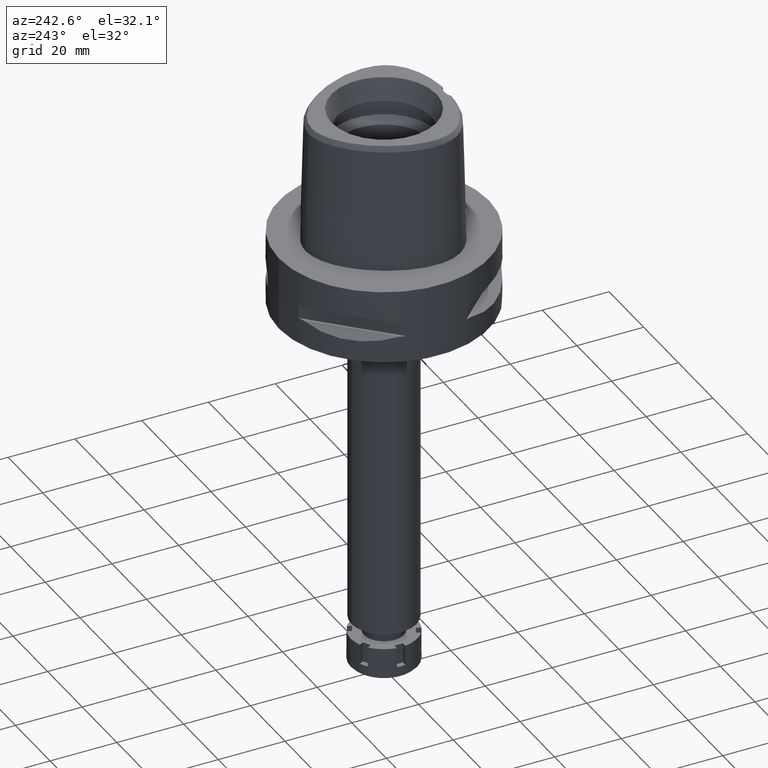
[diagram: clean part render]
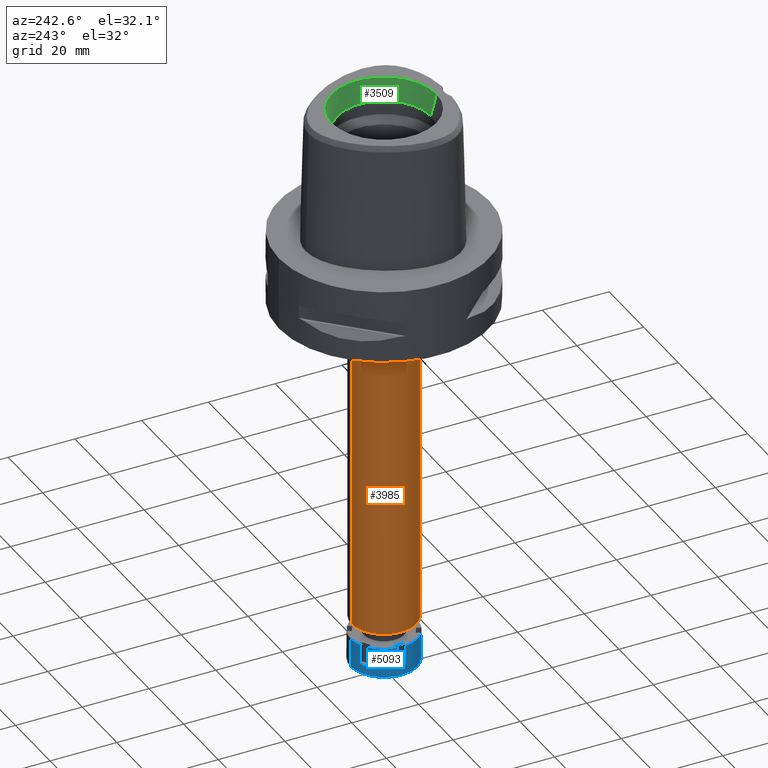
[diagram: same view with three faces highlighted in distinct colors, each labeled with its STEP entity id]
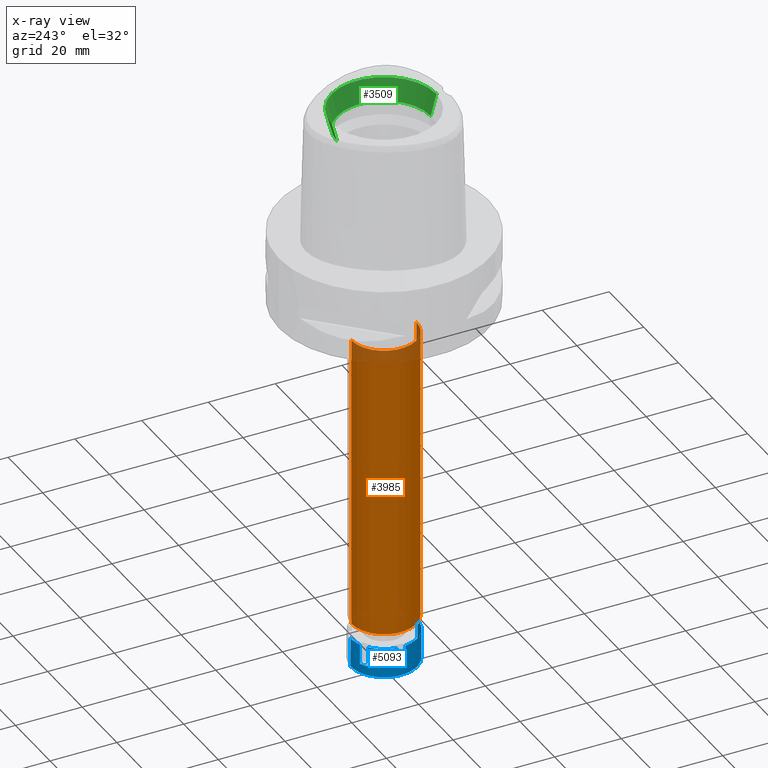
[diagram: x-ray of the same camera — body ghosted, the three highlighted faces saturated]
A machine part, auxiliary view with three faces highlighted in distinct colors.
The next image is the same camera in x-ray (body ghosted, the three faces saturated) — at least one of them is partly hidden behind the body in this view.
Their STEP definitions:

[orange] entity #3985 — the highlighted cylindrical surface (partial cylindrical patch) has radius 9.75 mm, axis along (0, 0, -1).
#63 = CARTESIAN_POINT ( 'NONE',  ( 0.0000000000000000000, 0.0000000000000000000, -32.00000000000000000 ) ) ;
#131 = DIRECTION ( 'NONE',  ( 0.0000000000000000000, -1.000000000000000000, 0.0000000000000000000 ) ) ;
#354 = DIRECTION ( 'NONE',  ( 0.0000000000000000000, 0.0000000000000000000, -1.000000000000000000 ) ) ;
#449 = VERTEX_POINT ( 'NONE', #1716 ) ;
#460 = EDGE_LOOP ( 'NONE', ( #4067, #4684, #1941, #2337 ) ) ;
#539 = CARTESIAN_POINT ( 'NONE',  ( 0.0000000000000000000, 1.304248841091999852E-14, -121.0000000000000000 ) ) ;
#731 = CARTESIAN_POINT ( 'NONE',  ( 0.0000000000000000000, -9.750000000000000000, -32.00000000000000000 ) ) ;
#848 = VECTOR ( 'NONE', #354, 1000.000000000000000 ) ;
#911 = VERTEX_POINT ( 'NONE', #3274 ) ;
#996 = EDGE_CURVE ( 'NONE', #5328, #911, #5111, .T. ) ;
#1007 = DIRECTION ( 'NONE',  ( 0.0000000000000000000, 0.0000000000000000000, -1.000000000000000000 ) ) ;
#1233 = EDGE_CURVE ( 'NONE', #5328, #449, #5398, .T. ) ;
#1247 = CARTESIAN_POINT ( 'NONE',  ( 0.0000000000000000000, -9.750000000000000000, -32.00000000000000000 ) ) ;
#1317 = DIRECTION ( 'NONE',  ( 0.0000000000000000000, 0.0000000000000000000, 1.000000000000000000 ) ) ;
#1520 = AXIS2_PLACEMENT_3D ( 'NONE', #63, #1746, #3836 ) ;
#1716 = CARTESIAN_POINT ( 'NONE',  ( 0.0000000000000000000, 9.750000000000000000, -32.00000000000000000 ) ) ;
#1746 = DIRECTION ( 'NONE',  ( 0.0000000000000000000, 0.0000000000000000000, -1.000000000000000000 ) ) ;
#1941 = ORIENTED_EDGE ( 'NONE', *, *, #1233, .T. ) ;
#2195 = DIRECTION ( 'NONE',  ( 0.0000000000000000000, 1.000000000000000000, 0.0000000000000000000 ) ) ;
#2236 = FACE_OUTER_BOUND ( 'NONE', #460, .T. ) ;
#2264 = CARTESIAN_POINT ( 'NONE',  ( 0.0000000000000000000, 1.304248841091999852E-14, 6.500000000000000000 ) ) ;
#2337 = ORIENTED_EDGE ( 'NONE', *, *, #2358, .T. ) ;
#2358 = EDGE_CURVE ( 'NONE', #449, #4967, #4524, .T. ) ;
#2440 = VECTOR ( 'NONE', #1007, 1000.000000000000000 ) ;
#2609 = AXIS2_PLACEMENT_3D ( 'NONE', #539, #1317, #2195 ) ;
#3118 = CARTESIAN_POINT ( 'NONE',  ( 0.0000000000000000000, 9.750000000000000000, -32.00000000000000000 ) ) ;
#3162 = CYLINDRICAL_SURFACE ( 'NONE', #3448, 9.750000000000000000 ) ;
#3274 = CARTESIAN_POINT ( 'NONE',  ( 0.0000000000000000000, -9.750000000000000000, -121.0000000000000000 ) ) ;
#3284 = EDGE_CURVE ( 'NONE', #4967, #911, #4496, .T. ) ;
#3448 = AXIS2_PLACEMENT_3D ( 'NONE', #2264, #3980, #131 ) ;
#3836 = DIRECTION ( 'NONE',  ( 0.0000000000000000000, -1.000000000000000000, 0.0000000000000000000 ) ) ;
#3980 = DIRECTION ( 'NONE',  ( 0.0000000000000000000, 0.0000000000000000000, -1.000000000000000000 ) ) ;
#3985 = ADVANCED_FACE ( 'NONE', ( #2236 ), #3162, .T. ) ;
#4067 = ORIENTED_EDGE ( 'NONE', *, *, #3284, .T. ) ;
#4496 = CIRCLE ( 'NONE', #2609, 9.750000000000000000 ) ;
#4524 = LINE ( 'NONE', #3118, #2440 ) ;
#4684 = ORIENTED_EDGE ( 'NONE', *, *, #996, .F. ) ;
#4967 = VERTEX_POINT ( 'NONE', #5166 ) ;
#5111 = LINE ( 'NONE', #1247, #848 ) ;
#5166 = CARTESIAN_POINT ( 'NONE',  ( 0.0000000000000000000, 9.750000000000000000, -121.0000000000000000 ) ) ;
#5328 = VERTEX_POINT ( 'NONE', #731 ) ;
#5398 = CIRCLE ( 'NONE', #1520, 9.750000000000000000 ) ;

[blue] entity #5093 — the highlighted cylindrical surface (partial cylindrical patch) has radius 10 mm, axis along (0, 0, -1).
#6 = CIRCLE ( 'NONE', #3507, 10.00000000000000000 ) ;
#32 = ORIENTED_EDGE ( 'NONE', *, *, #4158, .T. ) ;
#42 = DIRECTION ( 'NONE',  ( 0.0000000000000000000, 1.000000000000000000, 0.0000000000000000000 ) ) ;
#60 = VERTEX_POINT ( 'NONE', #3190 ) ;
#98 = VERTEX_POINT ( 'NONE', #1022 ) ;
#125 = DIRECTION ( 'NONE',  ( 0.0000000000000000000, -1.000000000000000000, 0.0000000000000000000 ) ) ;
#128 = DIRECTION ( 'NONE',  ( 0.0000000000000000000, 0.0000000000000000000, -1.000000000000000000 ) ) ;
#246 = ORIENTED_EDGE ( 'NONE', *, *, #3057, .T. ) ;
#262 = EDGE_CURVE ( 'NONE', #1766, #4148, #2400, .T. ) ;
#270 = DIRECTION ( 'NONE',  ( 0.0000000000000000000, 0.0000000000000000000, -1.000000000000000000 ) ) ;
#321 = CARTESIAN_POINT ( 'NONE',  ( 0.0000000000000000000, 0.0000000000000000000, 0.0000000000000000000 ) ) ;
#360 = ORIENTED_EDGE ( 'NONE', *, *, #262, .F. ) ;
#402 = DIRECTION ( 'NONE',  ( -0.6043315462976971419, 0.7967329428041960426, 0.0000000000000000000 ) ) ;
#406 = CARTESIAN_POINT ( 'NONE',  ( -6.043315462977000507, -7.967329428041999506, 0.0000000000000000000 ) ) ;
#477 = ORIENTED_EDGE ( 'NONE', *, *, #5081, .F. ) ;
#493 = AXIS2_PLACEMENT_3D ( 'NONE', #1601, #3325, #5043 ) ;
#521 = DIRECTION ( 'NONE',  ( -0.6043315462976971419, -0.7967329428041960426, 0.0000000000000000000 ) ) ;
#533 = EDGE_CURVE ( 'NONE', #3692, #3430, #929, .T. ) ;
#542 = CARTESIAN_POINT ( 'NONE',  ( -3.878251953514999961, 9.217329428041999506, 0.0000000000000000000 ) ) ;
#547 = FACE_OUTER_BOUND ( 'NONE', #3721, .T. ) ;
#581 = LINE ( 'NONE', #2291, #881 ) ;
#717 = ORIENTED_EDGE ( 'NONE', *, *, #920, .F. ) ;
#721 = CARTESIAN_POINT ( 'NONE',  ( 0.0000000000000000000, 0.0000000000000000000, -6.000000000000000000 ) ) ;
#752 = CARTESIAN_POINT ( 'NONE',  ( 0.0000000000000000000, -10.00000000000000000, -8.800000000000000711 ) ) ;
#775 = CARTESIAN_POINT ( 'NONE',  ( -3.878251953514999961, 9.217329428041999506, 0.0000000000000000000 ) ) ;
#787 = DIRECTION ( 'NONE',  ( -0.9921567416492210745, -0.1250000000000026090, 0.0000000000000000000 ) ) ;
#832 = DIRECTION ( 'NONE',  ( 0.0000000000000000000, 0.0000000000000000000, -1.000000000000000000 ) ) ;
#835 = LINE ( 'NONE', #406, #3934 ) ;
#842 = VERTEX_POINT ( 'NONE', #4616 ) ;
#871 = VERTEX_POINT ( 'NONE', #1170 ) ;
#881 = VECTOR ( 'NONE', #270, 1000.000000000000000 ) ;
#896 = DIRECTION ( 'NONE',  ( 0.0000000000000000000, 0.0000000000000000000, -1.000000000000000000 ) ) ;
#898 = VERTEX_POINT ( 'NONE', #1141 ) ;
#920 = EDGE_CURVE ( 'NONE', #871, #898, #5419, .T. ) ;
#929 = LINE ( 'NONE', #1014, #2466 ) ;
#941 = VECTOR ( 'NONE', #896, 1000.000000000000000 ) ;
#960 = CYLINDRICAL_SURFACE ( 'NONE', #2312, 10.00000000000000000 ) ;
#999 = LINE ( 'NONE', #4484, #3478 ) ;
#1006 = VERTEX_POINT ( 'NONE', #4183 ) ;
#1014 = CARTESIAN_POINT ( 'NONE',  ( 0.0000000000000000000, 10.00000000000000000, 0.0000000000000000000 ) ) ;
#1022 = CARTESIAN_POINT ( 'NONE',  ( -3.878251953516000050, -9.217329428041999506, 0.0000000000000000000 ) ) ;
#1049 = ORIENTED_EDGE ( 'NONE', *, *, #2661, .T. ) ;
#1062 = AXIS2_PLACEMENT_3D ( 'NONE', #2177, #5140, #1327 ) ;
#1141 = CARTESIAN_POINT ( 'NONE',  ( -6.043315462977000507, 7.967329428041999506, 0.0000000000000000000 ) ) ;
#1170 = CARTESIAN_POINT ( 'NONE',  ( -6.043315462977000507, 7.967329428041999506, -6.000000000000000000 ) ) ;
#1179 = DIRECTION ( 'NONE',  ( 0.0000000000000000000, 0.0000000000000000000, -1.000000000000000000 ) ) ;
#1269 = DIRECTION ( 'NONE',  ( -0.3878251953515154948, 0.9217329428042371209, 0.0000000000000000000 ) ) ;
#1327 = DIRECTION ( 'NONE',  ( -0.9921567416492210745, 0.1250000000000026090, 0.0000000000000000000 ) ) ;
#1376 = CARTESIAN_POINT ( 'NONE',  ( 0.0000000000000000000, 0.0000000000000000000, 0.0000000000000000000 ) ) ;
#1476 = VERTEX_POINT ( 'NONE', #2445 ) ;
#1529 = AXIS2_PLACEMENT_3D ( 'NONE', #4368, #128, #521 ) ;
#1593 = EDGE_CURVE ( 'NONE', #871, #4148, #1614, .T. ) ;
#1601 = CARTESIAN_POINT ( 'NONE',  ( 0.0000000000000000000, 0.0000000000000000000, 0.0000000000000000000 ) ) ;
#1614 = CIRCLE ( 'NONE', #2335, 9.999999999999998224 ) ;
#1669 = CARTESIAN_POINT ( 'NONE',  ( 0.0000000000000000000, -10.00000000000000000, 0.0000000000000000000 ) ) ;
#1766 = VERTEX_POINT ( 'NONE', #542 ) ;
#1770 = AXIS2_PLACEMENT_3D ( 'NONE', #3000, #4264, #42 ) ;
#1785 = DIRECTION ( 'NONE',  ( 0.0000000000000000000, 0.0000000000000000000, -1.000000000000000000 ) ) ;
#1822 = DIRECTION ( 'NONE',  ( 0.0000000000000000000, 0.0000000000000000000, -1.000000000000000000 ) ) ;
#1990 = CARTESIAN_POINT ( 'NONE',  ( 0.0000000000000000000, 0.0000000000000000000, -6.000000000000000000 ) ) ;
#2045 = ORIENTED_EDGE ( 'NONE', *, *, #533, .T. ) ;
#2104 = VECTOR ( 'NONE', #4149, 1000.000000000000000 ) ;
#2177 = CARTESIAN_POINT ( 'NONE',  ( 0.0000000000000000000, 0.0000000000000000000, 0.0000000000000000000 ) ) ;
#2291 = CARTESIAN_POINT ( 'NONE',  ( -9.921567416491999580, 1.250000000000000000, 0.0000000000000000000 ) ) ;
#2312 = AXIS2_PLACEMENT_3D ( 'NONE', #1376, #3107, #125 ) ;
#2335 = AXIS2_PLACEMENT_3D ( 'NONE', #721, #832, #402 ) ;
#2400 = LINE ( 'NONE', #775, #2104 ) ;
#2408 = CIRCLE ( 'NONE', #2504, 9.999999999999998224 ) ;
#2422 = CARTESIAN_POINT ( 'NONE',  ( -3.878251953514999961, 9.217329428041999506, -6.000000000000000000 ) ) ;
#2445 = CARTESIAN_POINT ( 'NONE',  ( -6.043315462977000507, -7.967329428041999506, -6.000000000000000000 ) ) ;
#2455 = VERTEX_POINT ( 'NONE', #4409 ) ;
#2466 = VECTOR ( 'NONE', #1822, 1000.000000000000000 ) ;
#2504 = AXIS2_PLACEMENT_3D ( 'NONE', #1990, #1179, #787 ) ;
#2511 = ORIENTED_EDGE ( 'NONE', *, *, #4941, .T. ) ;
#2547 = DIRECTION ( 'NONE',  ( 0.0000000000000000000, 0.0000000000000000000, 1.000000000000000000 ) ) ;
#2551 = ORIENTED_EDGE ( 'NONE', *, *, #4768, .F. ) ;
#2580 = CARTESIAN_POINT ( 'NONE',  ( 0.0000000000000000000, 10.00000000000000000, 0.0000000000000000000 ) ) ;
#2616 = VERTEX_POINT ( 'NONE', #5481 ) ;
#2661 = EDGE_CURVE ( 'NONE', #2616, #842, #3691, .T. ) ;
#2662 = CARTESIAN_POINT ( 'NONE',  ( 0.0000000000000000000, 0.0000000000000000000, -6.000000000000000000 ) ) ;
#2770 = CIRCLE ( 'NONE', #1062, 9.999999999999998224 ) ;
#3000 = CARTESIAN_POINT ( 'NONE',  ( 0.0000000000000000000, 0.0000000000000000000, -8.800000000000000711 ) ) ;
#3057 = EDGE_CURVE ( 'NONE', #1766, #3692, #6, .T. ) ;
#3092 = VECTOR ( 'NONE', #2547, 1000.000000000000000 ) ;
#3107 = DIRECTION ( 'NONE',  ( 0.0000000000000000000, 0.0000000000000000000, -1.000000000000000000 ) ) ;
#3110 = ORIENTED_EDGE ( 'NONE', *, *, #5510, .F. ) ;
#3190 = CARTESIAN_POINT ( 'NONE',  ( -9.921567416491999580, 1.250000000000000000, -6.000000000000000000 ) ) ;
#3243 = ORIENTED_EDGE ( 'NONE', *, *, #5007, .T. ) ;
#3325 = DIRECTION ( 'NONE',  ( 0.0000000000000000000, 0.0000000000000000000, -1.000000000000000000 ) ) ;
#3359 = CARTESIAN_POINT ( 'NONE',  ( -6.043315462977000507, 7.967329428041999506, -6.000000000000000000 ) ) ;
#3413 = DIRECTION ( 'NONE',  ( 0.0000000000000000000, 0.0000000000000000000, -1.000000000000000000 ) ) ;
#3430 = VERTEX_POINT ( 'NONE', #4960 ) ;
#3449 = CIRCLE ( 'NONE', #493, 10.00000000000000000 ) ;
#3468 = ORIENTED_EDGE ( 'NONE', *, *, #5163, .T. ) ;
#3469 = ORIENTED_EDGE ( 'NONE', *, *, #3629, .T. ) ;
#3478 = VECTOR ( 'NONE', #4125, 1000.000000000000000 ) ;
#3507 = AXIS2_PLACEMENT_3D ( 'NONE', #321, #4232, #1269 ) ;
#3508 = EDGE_CURVE ( 'NONE', #2455, #60, #581, .T. ) ;
#3546 = ORIENTED_EDGE ( 'NONE', *, *, #4278, .F. ) ;
#3574 = ORIENTED_EDGE ( 'NONE', *, *, #3508, .F. ) ;
#3580 = LINE ( 'NONE', #4485, #3760 ) ;
#3629 = EDGE_CURVE ( 'NONE', #5059, #1476, #4082, .T. ) ;
#3691 = CIRCLE ( 'NONE', #1529, 9.999999999999998224 ) ;
#3692 = VERTEX_POINT ( 'NONE', #2580 ) ;
#3706 = VERTEX_POINT ( 'NONE', #1669 ) ;
#3721 = EDGE_LOOP ( 'NONE', ( #360, #246, #2045, #3243, #3546, #32, #2551, #3469, #477, #1049, #3110, #3468, #3574, #2511, #717, #4772 ) ) ;
#3760 = VECTOR ( 'NONE', #4857, 1000.000000000000000 ) ;
#3934 = VECTOR ( 'NONE', #3413, 1000.000000000000000 ) ;
#3950 = CARTESIAN_POINT ( 'NONE',  ( -3.878251953516000050, -9.217329428041999506, -6.000000000000000000 ) ) ;
#3962 = DIRECTION ( 'NONE',  ( -0.3878251953516005379, -0.9217329428042011497, 0.0000000000000000000 ) ) ;
#4082 = CIRCLE ( 'NONE', #4270, 10.00000000000000000 ) ;
#4125 = DIRECTION ( 'NONE',  ( 0.0000000000000000000, 0.0000000000000000000, 1.000000000000000000 ) ) ;
#4148 = VERTEX_POINT ( 'NONE', #2422 ) ;
#4149 = DIRECTION ( 'NONE',  ( 0.0000000000000000000, 0.0000000000000000000, -1.000000000000000000 ) ) ;
#4158 = EDGE_CURVE ( 'NONE', #3706, #98, #3449, .T. ) ;
#4183 = CARTESIAN_POINT ( 'NONE',  ( -9.921567416491999580, -1.250000000000000000, -6.000000000000000000 ) ) ;
#4232 = DIRECTION ( 'NONE',  ( 0.0000000000000000000, 0.0000000000000000000, -1.000000000000000000 ) ) ;
#4264 = DIRECTION ( 'NONE',  ( 0.0000000000000000000, 0.0000000000000000000, 1.000000000000000000 ) ) ;
#4270 = AXIS2_PLACEMENT_3D ( 'NONE', #2662, #1785, #3962 ) ;
#4278 = EDGE_CURVE ( 'NONE', #3706, #4859, #4677, .T. ) ;
#4368 = CARTESIAN_POINT ( 'NONE',  ( 0.0000000000000000000, 0.0000000000000000000, 0.0000000000000000000 ) ) ;
#4409 = CARTESIAN_POINT ( 'NONE',  ( -9.921567416491999580, 1.250000000000000000, 0.0000000000000000000 ) ) ;
#4484 = CARTESIAN_POINT ( 'NONE',  ( -9.921567416491999580, -1.250000000000000000, -6.000000000000000000 ) ) ;
#4485 = CARTESIAN_POINT ( 'NONE',  ( -3.878251953516000050, -9.217329428041999506, -6.000000000000000000 ) ) ;
#4616 = CARTESIAN_POINT ( 'NONE',  ( -9.921567416491999580, -1.250000000000000000, 0.0000000000000000000 ) ) ;
#4677 = LINE ( 'NONE', #5552, #941 ) ;
#4768 = EDGE_CURVE ( 'NONE', #5059, #98, #3580, .T. ) ;
#4772 = ORIENTED_EDGE ( 'NONE', *, *, #1593, .T. ) ;
#4857 = DIRECTION ( 'NONE',  ( 0.0000000000000000000, 0.0000000000000000000, 1.000000000000000000 ) ) ;
#4859 = VERTEX_POINT ( 'NONE', #752 ) ;
#4941 = EDGE_CURVE ( 'NONE', #2455, #898, #2770, .T. ) ;
#4960 = CARTESIAN_POINT ( 'NONE',  ( 0.0000000000000000000, 10.00000000000000000, -8.800000000000000711 ) ) ;
#5007 = EDGE_CURVE ( 'NONE', #3430, #4859, #5558, .T. ) ;
#5043 = DIRECTION ( 'NONE',  ( 0.0000000000000000000, -1.000000000000000000, 0.0000000000000000000 ) ) ;
#5059 = VERTEX_POINT ( 'NONE', #3950 ) ;
#5081 = EDGE_CURVE ( 'NONE', #2616, #1476, #835, .T. ) ;
#5093 = ADVANCED_FACE ( 'NONE', ( #547 ), #960, .T. ) ;
#5140 = DIRECTION ( 'NONE',  ( 0.0000000000000000000, 0.0000000000000000000, -1.000000000000000000 ) ) ;
#5163 = EDGE_CURVE ( 'NONE', #1006, #60, #2408, .T. ) ;
#5419 = LINE ( 'NONE', #3359, #3092 ) ;
#5481 = CARTESIAN_POINT ( 'NONE',  ( -6.043315462977000507, -7.967329428041999506, 0.0000000000000000000 ) ) ;
#5510 = EDGE_CURVE ( 'NONE', #1006, #842, #999, .T. ) ;
#5552 = CARTESIAN_POINT ( 'NONE',  ( 0.0000000000000000000, -10.00000000000000000, 0.0000000000000000000 ) ) ;
#5558 = CIRCLE ( 'NONE', #1770, 10.00000000000000000 ) ;

[green] entity #3509 — the highlighted conical surface has half-angle 15 deg.
#122 = EDGE_CURVE ( 'NONE', #4344, #2685, #1383, .T. ) ;
#149 = VERTEX_POINT ( 'NONE', #1779 ) ;
#220 = AXIS2_PLACEMENT_3D ( 'NONE', #1337, #3089, #3116 ) ;
#232 = CARTESIAN_POINT ( 'NONE',  ( 0.0000000000000000000, 0.0000000000000000000, 31.60000000000000142 ) ) ;
#312 = CONICAL_SURFACE ( 'NONE', #220, 14.85743741577999977, 0.2617993877991000029 ) ;
#497 = EDGE_CURVE ( 'NONE', #1723, #4344, #5186, .T. ) ;
#889 = LINE ( 'NONE', #2238, #5108 ) ;
#1314 = CARTESIAN_POINT ( 'NONE',  ( 0.0000000000000000000, -15.71487483155999776, 38.00000000000000000 ) ) ;
#1337 = CARTESIAN_POINT ( 'NONE',  ( 0.0000000000000000000, 0.0000000000000000000, 34.79999999999999716 ) ) ;
#1383 = CIRCLE ( 'NONE', #3905, 15.71487483155999776 ) ;
#1513 = DIRECTION ( 'NONE',  ( 0.0000000000000000000, -1.000000000000000000, 0.0000000000000000000 ) ) ;
#1723 = VERTEX_POINT ( 'NONE', #2648 ) ;
#1743 = AXIS2_PLACEMENT_3D ( 'NONE', #232, #5381, #1513 ) ;
#1779 = CARTESIAN_POINT ( 'NONE',  ( 0.0000000000000000000, 14.00000000000000000, 31.60000000000000142 ) ) ;
#1805 = CARTESIAN_POINT ( 'NONE',  ( 0.0000000000000000000, 0.0000000000000000000, 38.00000000000000000 ) ) ;
#1833 = DIRECTION ( 'NONE',  ( 0.0000000000000000000, -1.000000000000000000, 0.0000000000000000000 ) ) ;
#2238 = CARTESIAN_POINT ( 'NONE',  ( 0.0000000000000000000, 14.00000000000000000, 31.60000000000000142 ) ) ;
#2648 = CARTESIAN_POINT ( 'NONE',  ( 0.0000000000000000000, -14.00000000000000000, 31.60000000000000142 ) ) ;
#2655 = ORIENTED_EDGE ( 'NONE', *, *, #4224, .F. ) ;
#2685 = VERTEX_POINT ( 'NONE', #4849 ) ;
#2833 = VECTOR ( 'NONE', #4685, 1000.000000000000000 ) ;
#3089 = DIRECTION ( 'NONE',  ( 0.0000000000000000000, 0.0000000000000000000, 1.000000000000000000 ) ) ;
#3116 = DIRECTION ( 'NONE',  ( 0.0000000000000000000, 1.000000000000000000, 0.0000000000000000000 ) ) ;
#3442 = ORIENTED_EDGE ( 'NONE', *, *, #4687, .F. ) ;
#3509 = ADVANCED_FACE ( 'NONE', ( #4459 ), #312, .F. ) ;
#3526 = DIRECTION ( 'NONE',  ( 0.0000000000000000000, 0.0000000000000000000, 1.000000000000000000 ) ) ;
#3905 = AXIS2_PLACEMENT_3D ( 'NONE', #1805, #3526, #1833 ) ;
#3958 = DIRECTION ( 'NONE',  ( 0.0000000000000000000, 0.2588190451025869088, 0.9659258262890505486 ) ) ;
#4129 = ORIENTED_EDGE ( 'NONE', *, *, #497, .T. ) ;
#4175 = ORIENTED_EDGE ( 'NONE', *, *, #122, .T. ) ;
#4224 = EDGE_CURVE ( 'NONE', #1723, #149, #4353, .T. ) ;
#4344 = VERTEX_POINT ( 'NONE', #1314 ) ;
#4353 = CIRCLE ( 'NONE', #1743, 14.00000000000000000 ) ;
#4459 = FACE_OUTER_BOUND ( 'NONE', #4478, .T. ) ;
#4478 = EDGE_LOOP ( 'NONE', ( #3442, #2655, #4129, #4175 ) ) ;
#4685 = DIRECTION ( 'NONE',  ( 0.0000000000000000000, -0.2588190451025869088, 0.9659258262890505486 ) ) ;
#4687 = EDGE_CURVE ( 'NONE', #149, #2685, #889, .T. ) ;
#4739 = CARTESIAN_POINT ( 'NONE',  ( 0.0000000000000000000, -14.00000000000000000, 31.60000000000000142 ) ) ;
#4849 = CARTESIAN_POINT ( 'NONE',  ( 0.0000000000000000000, 15.71487483155999776, 38.00000000000000000 ) ) ;
#5108 = VECTOR ( 'NONE', #3958, 1000.000000000000000 ) ;
#5186 = LINE ( 'NONE', #4739, #2833 ) ;
#5381 = DIRECTION ( 'NONE',  ( 0.0000000000000000000, 0.0000000000000000000, 1.000000000000000000 ) ) ;